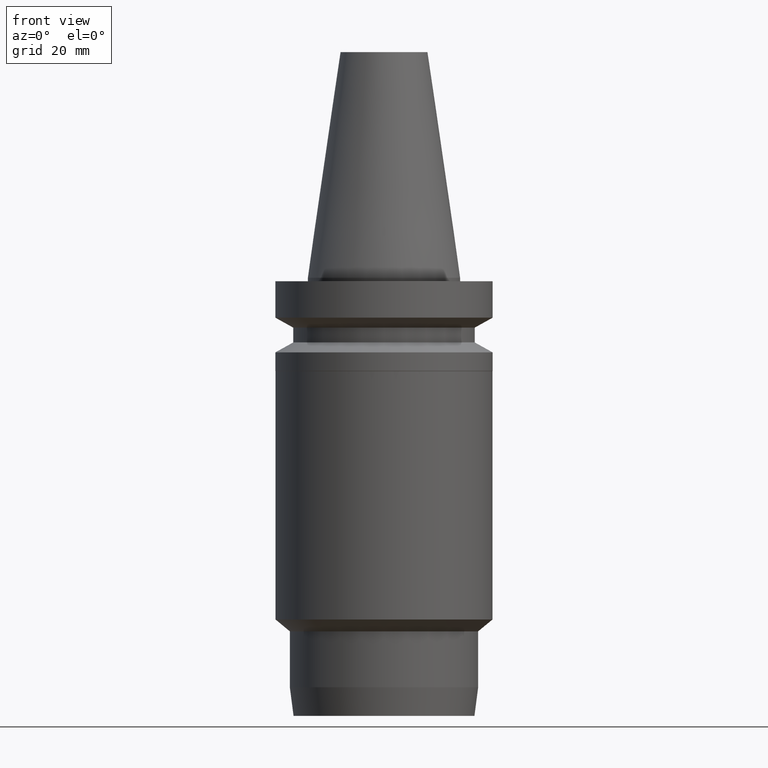
[diagram: clean part render]
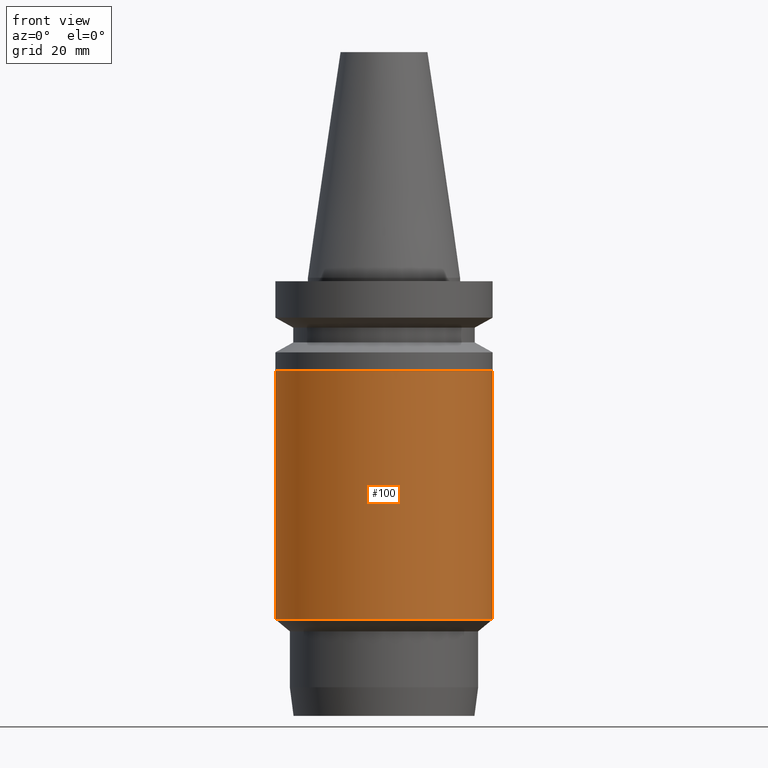
[diagram: same view with one face highlighted and labeled with its STEP entity id]
A machine part, front view. The second image highlights one B-rep face of the part: STEP entity #100.
In plain terms, the highlighted cylindrical surface (bore or boss wall) has radius 31.45 mm, axis along (0, -0, -1).
Its self-contained STEP definition (entity closure, byte-faithful):
#95=EDGE_CURVE('Unnamed[1]',#209,#209,#210,.T.);
#100=ADVANCED_FACE('Unnamed[1]',(#216,#217),#218,.T.);
#128=EDGE_CURVE('Unnamed[1]',#261,#261,#262,.T.);
#209=VERTEX_POINT('',#349);
#210=CIRCLE('',#350,31.4500000000005);
#216=FACE_BOUND('',#358,.T.);
#217=FACE_BOUND('',#359,.T.);
#218=CYLINDRICAL_SURFACE('',#360,31.4499999999876);
#261=VERTEX_POINT('',#414);
#262=CIRCLE('',#415,31.4499999999746);
#349=CARTESIAN_POINT('',(6.06552779486206E-015,31.4500000000005,-99.0575862213517));
#350=AXIS2_PLACEMENT_3D('',#486,#487,#488);
#358=EDGE_LOOP('',(#493));
#359=EDGE_LOOP('',(#494));
#360=AXIS2_PLACEMENT_3D('',#495,#496,#497);
#414=CARTESIAN_POINT('',(1.65633479584681E-015,31.4499999999747,-27.0500000000002));
#415=AXIS2_PLACEMENT_3D('',#545,#546,#547);
#486=CARTESIAN_POINT('',(6.06552779486206E-015,1.06065169013022E-015,-99.0575862213517));
#487=DIRECTION('',(6.12323399573677E-017,-4.59983100815415E-016,-1.0));
#488=DIRECTION('',(2.33386888730046E-032,1.0,-4.59983100815415E-016));
#493=ORIENTED_EDGE('',*,*,#95,.F.);
#494=ORIENTED_EDGE('',*,*,#128,.T.);
#495=CARTESIAN_POINT('',(3.86093129535443E-015,1.76217880862955E-014,-63.0537931106759));
#496=DIRECTION('',(6.12323399573677E-017,-4.59983100815415E-016,-1.0));
#497=DIRECTION('',(2.33386888730046E-032,1.0,-4.59983100815415E-016));
#545=CARTESIAN_POINT('',(1.65633479584681E-015,3.41829244824608E-014,-27.0500000000002));
#546=DIRECTION('',(6.12323399573677E-017,-4.59983100815415E-016,-1.0));
#547=DIRECTION('',(2.33386888730046E-032,1.0,-4.59983100815415E-016));